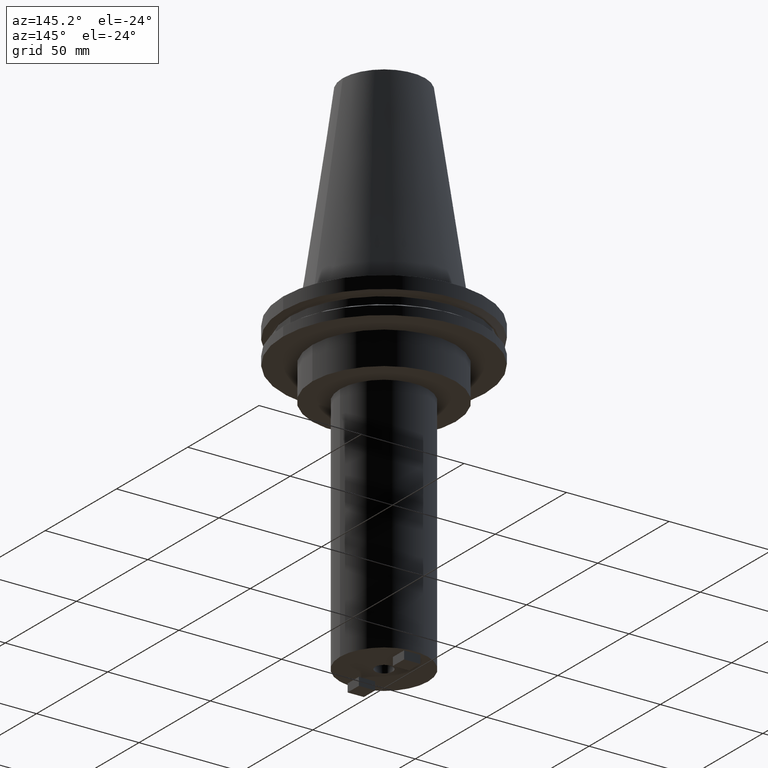
[diagram: clean part render]
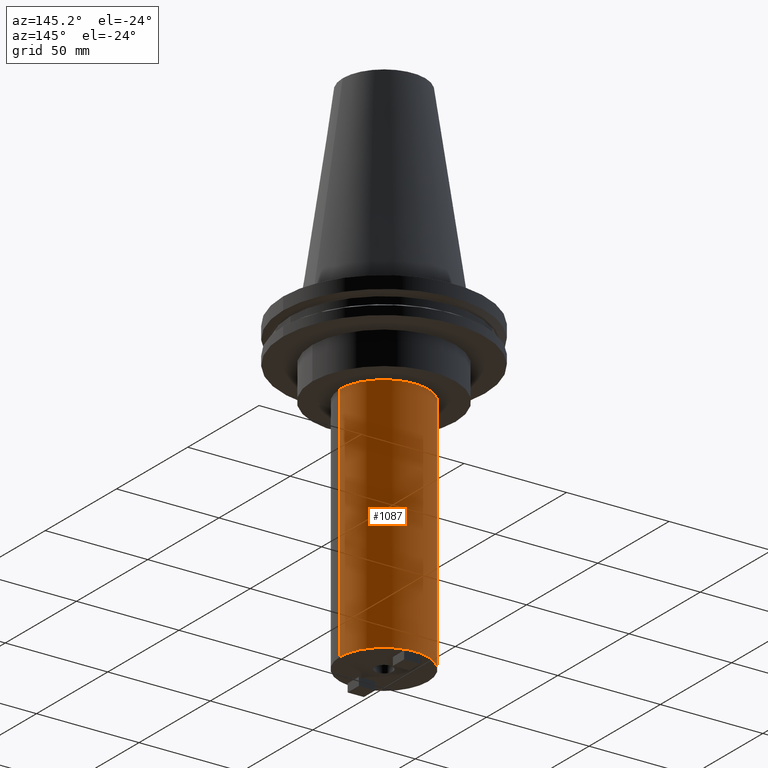
[diagram: same view with one face highlighted and labeled with its STEP entity id]
A machine part, auxiliary view. The second image highlights one B-rep face of the part: STEP entity #1087.
In plain terms, the highlighted cylindrical surface (partial cylindrical patch) has radius 21.4503 mm, axis along (-0, -0, 1).
Its self-contained STEP definition (entity closure, byte-faithful):
#6 = CARTESIAN_POINT ( 'NONE',  ( 0.000000000000000000, 0.000000000000000000, 0.000000000000000000 ) ) ;
#46 = CARTESIAN_POINT ( 'NONE',  ( 21.45029999999999859, 0.000000000000000000, -152.4000000000000057 ) ) ;
#54 = LINE ( 'NONE', #803, #763 ) ;
#111 = EDGE_CURVE ( 'NONE', #314, #660, #393, .T. ) ;
#167 = FACE_OUTER_BOUND ( 'NONE', #617, .T. ) ;
#170 = CIRCLE ( 'NONE', #321, 21.45029999999999859 ) ;
#173 = DIRECTION ( 'NONE',  ( 1.000000000000000000, 0.000000000000000000, 0.000000000000000000 ) ) ;
#193 = ORIENTED_EDGE ( 'NONE', *, *, #891, .T. ) ;
#210 = CARTESIAN_POINT ( 'NONE',  ( 21.45029999999999859, 0.000000000000000000, -35.04999999999999716 ) ) ;
#231 = CARTESIAN_POINT ( 'NONE',  ( -21.45029999999999859, 2.626904123575046818E-15, 0.000000000000000000 ) ) ;
#254 = CARTESIAN_POINT ( 'NONE',  ( 0.000000000000000000, 0.000000000000000000, -35.04999999999999716 ) ) ;
#270 = EDGE_CURVE ( 'NONE', #778, #660, #170, .T. ) ;
#305 = DIRECTION ( 'NONE',  ( -0.000000000000000000, -0.000000000000000000, 1.000000000000000000 ) ) ;
#314 = VERTEX_POINT ( 'NONE', #670 ) ;
#321 = AXIS2_PLACEMENT_3D ( 'NONE', #254, #413, #173 ) ;
#333 = ORIENTED_EDGE ( 'NONE', *, *, #111, .T. ) ;
#383 = CIRCLE ( 'NONE', #807, 21.45029999999999859 ) ;
#393 = LINE ( 'NONE', #231, #549 ) ;
#413 = DIRECTION ( 'NONE',  ( -0.000000000000000000, -0.000000000000000000, 1.000000000000000000 ) ) ;
#437 = AXIS2_PLACEMENT_3D ( 'NONE', #6, #506, #523 ) ;
#441 = ORIENTED_EDGE ( 'NONE', *, *, #270, .F. ) ;
#506 = DIRECTION ( 'NONE',  ( -0.000000000000000000, -0.000000000000000000, 1.000000000000000000 ) ) ;
#523 = DIRECTION ( 'NONE',  ( 1.000000000000000000, 0.000000000000000000, 0.000000000000000000 ) ) ;
#549 = VECTOR ( 'NONE', #305, 1000.000000000000000 ) ;
#617 = EDGE_LOOP ( 'NONE', ( #193, #333, #441, #1014 ) ) ;
#660 = VERTEX_POINT ( 'NONE', #949 ) ;
#670 = CARTESIAN_POINT ( 'NONE',  ( -21.45029999999999859, 2.626904123575046818E-15, -152.4000000000000057 ) ) ;
#750 = CYLINDRICAL_SURFACE ( 'NONE', #437, 21.45029999999999859 ) ;
#763 = VECTOR ( 'NONE', #886, 1000.000000000000000 ) ;
#778 = VERTEX_POINT ( 'NONE', #210 ) ;
#799 = DIRECTION ( 'NONE',  ( -0.000000000000000000, -0.000000000000000000, 1.000000000000000000 ) ) ;
#803 = CARTESIAN_POINT ( 'NONE',  ( 21.45029999999999859, 0.000000000000000000, 0.000000000000000000 ) ) ;
#807 = AXIS2_PLACEMENT_3D ( 'NONE', #990, #799, #977 ) ;
#815 = EDGE_CURVE ( 'NONE', #836, #778, #54, .T. ) ;
#836 = VERTEX_POINT ( 'NONE', #46 ) ;
#886 = DIRECTION ( 'NONE',  ( -0.000000000000000000, -0.000000000000000000, 1.000000000000000000 ) ) ;
#891 = EDGE_CURVE ( 'NONE', #836, #314, #383, .T. ) ;
#949 = CARTESIAN_POINT ( 'NONE',  ( -21.45029999999999859, 2.626904123575046818E-15, -35.04999999999999716 ) ) ;
#977 = DIRECTION ( 'NONE',  ( 1.000000000000000000, 0.000000000000000000, 0.000000000000000000 ) ) ;
#990 = CARTESIAN_POINT ( 'NONE',  ( 0.000000000000000000, 0.000000000000000000, -152.4000000000000057 ) ) ;
#1014 = ORIENTED_EDGE ( 'NONE', *, *, #815, .F. ) ;
#1087 = ADVANCED_FACE ( 'NONE', ( #167 ), #750, .T. ) ;